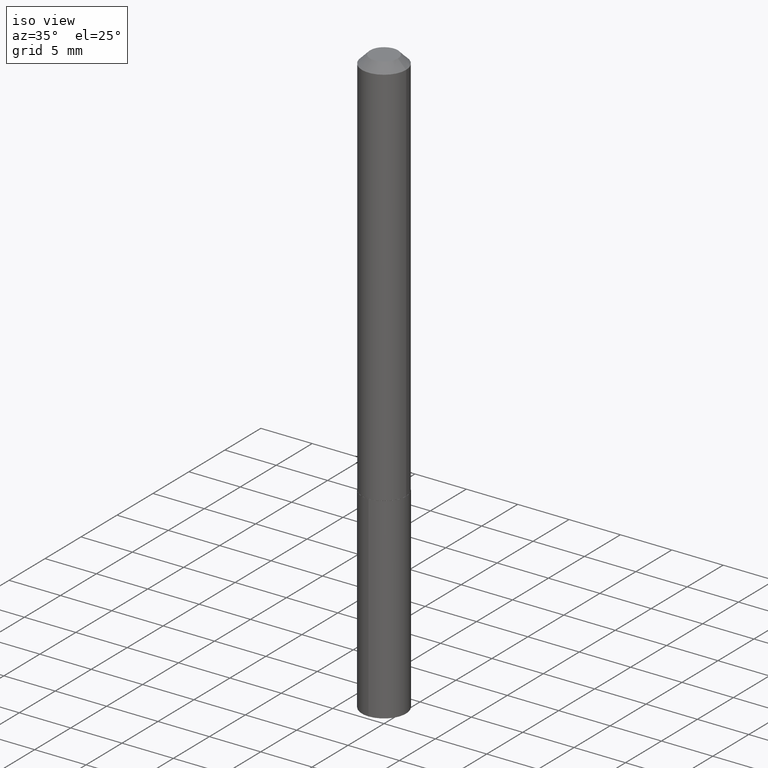
[diagram: clean part render]
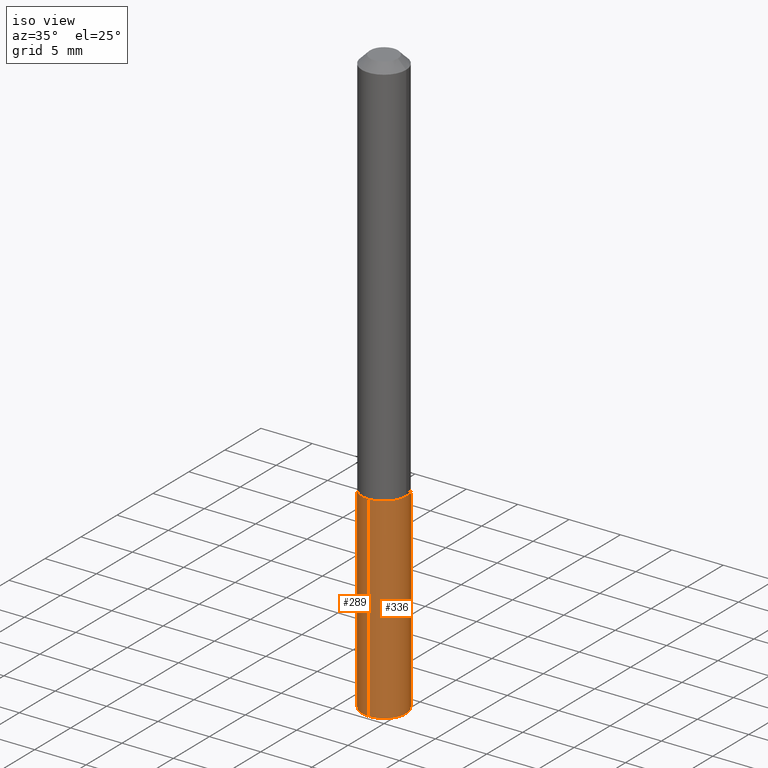
[diagram: same view with one multi-face feature highlighted, each face labeled with its STEP entity id]
A machine part, iso view. The highlighted faces form ONE feature: a constant-radius fillet chain: 2 tangent blend faces with common blend radius 2.1501 mm. The faces share edges in the B-rep.
Their STEP definitions:
[1] entity #289 (Cylinder):
#9 = VERTEX_POINT ( 'NONE', #299 ) ;
#19 = EDGE_CURVE ( 'NONE', #88, #9, #139, .T. ) ;
#21 = EDGE_LOOP ( 'NONE', ( #233, #361, #349, #92 ) ) ;
#26 = AXIS2_PLACEMENT_3D ( 'NONE', #315, #357, #378 ) ;
#35 = EDGE_CURVE ( 'NONE', #242, #87, #50, .T. ) ;
#50 = LINE ( 'NONE', #143, #379 ) ;
#55 = CARTESIAN_POINT ( 'NONE',  ( 6.014744258209616094E-16, 0.08464999999999475722, -1.507900000000000240 ) ) ;
#61 = CARTESIAN_POINT ( 'NONE',  ( 6.014744258209803449E-16, 0.08464999999999213431, -2.260818100860706448 ) ) ;
#87 = VERTEX_POINT ( 'NONE', #335 ) ;
#88 = VERTEX_POINT ( 'NONE', #61 ) ;
#92 = ORIENTED_EDGE ( 'NONE', *, *, #184, .F. ) ;
#108 = EDGE_CURVE ( 'NONE', #88, #242, #187, .T. ) ;
#111 = FACE_OUTER_BOUND ( 'NONE', #21, .T. ) ;
#127 = CARTESIAN_POINT ( 'NONE',  ( 5.528822024237795342E-29, -7.893515590949963390E-15, -2.260818100860706004 ) ) ;
#131 = DIRECTION ( 'NONE',  ( -6.982962677686265922E-15, -1.000000000000000000, 3.227227399485248397E-15 ) ) ;
#137 = CYLINDRICAL_SURFACE ( 'NONE', #319, 0.08465000000000001690 ) ;
#139 = LINE ( 'NONE', #55, #268 ) ;
#143 = CARTESIAN_POINT ( 'NONE',  ( -5.911077906661056270E-16, -0.08465000000000527658, -1.507899999999999796 ) ) ;
#174 = DIRECTION ( 'NONE',  ( -2.445550995900255209E-29, 3.491363638493147218E-15, 1.000000000000000000 ) ) ;
#176 = DIRECTION ( 'NONE',  ( -2.445550995900255490E-29, 3.491363638493147218E-15, 1.000000000000000000 ) ) ;
#184 = EDGE_CURVE ( 'NONE', #9, #87, #310, .T. ) ;
#187 = CIRCLE ( 'NONE', #324, 0.08465000000000001690 ) ;
#210 = DIRECTION ( 'NONE',  ( -2.445550995900255209E-29, 3.491363638493147218E-15, 1.000000000000000000 ) ) ;
#233 = ORIENTED_EDGE ( 'NONE', *, *, #19, .F. ) ;
#242 = VERTEX_POINT ( 'NONE', #374 ) ;
#268 = VECTOR ( 'NONE', #210, 39.37007874015748143 ) ;
#289 = ADVANCED_FACE ( 'NONE', ( #111 ), #137, .T. ) ;
#299 = CARTESIAN_POINT ( 'NONE',  ( 6.014744258209802463E-16, 0.08464999999999475722, -1.507900000000000240 ) ) ;
#310 = CIRCLE ( 'NONE', #26, 0.08465000000000001690 ) ;
#315 = CARTESIAN_POINT ( 'NONE',  ( 3.687522412846567571E-29, -5.264804710841579511E-15, -1.507900000000000018 ) ) ;
#316 = DIRECTION ( 'NONE',  ( -6.982962677686265922E-15, -1.000000000000000000, 3.227227399485248397E-15 ) ) ;
#319 = AXIS2_PLACEMENT_3D ( 'NONE', #356, #176, #131 ) ;
#324 = AXIS2_PLACEMENT_3D ( 'NONE', #127, #345, #316 ) ;
#335 = CARTESIAN_POINT ( 'NONE',  ( -5.911077906661056270E-16, -0.08465000000000527658, -1.507899999999999796 ) ) ;
#345 = DIRECTION ( 'NONE',  ( -2.445550995900255490E-29, 3.491363638493147218E-15, 1.000000000000000000 ) ) ;
#349 = ORIENTED_EDGE ( 'NONE', *, *, #35, .T. ) ;
#356 = CARTESIAN_POINT ( 'NONE',  ( 3.687522412846567571E-29, -5.264804710841579511E-15, -1.507900000000000018 ) ) ;
#357 = DIRECTION ( 'NONE',  ( -2.445550995900255490E-29, 3.491363638493147218E-15, 1.000000000000000000 ) ) ;
#361 = ORIENTED_EDGE ( 'NONE', *, *, #108, .T. ) ;
#374 = CARTESIAN_POINT ( 'NONE',  ( -5.911077906660871874E-16, -0.08465000000000792724, -2.260818100860705560 ) ) ;
#378 = DIRECTION ( 'NONE',  ( -6.982962677686265922E-15, -1.000000000000000000, 3.227227399485248397E-15 ) ) ;
#379 = VECTOR ( 'NONE', #174, 39.37007874015748143 ) ;
[2] entity #336 (Cylinder):
#9 = VERTEX_POINT ( 'NONE', #299 ) ;
#19 = EDGE_CURVE ( 'NONE', #88, #9, #139, .T. ) ;
#24 = DIRECTION ( 'NONE',  ( -2.445550995900255490E-29, 3.491363638493147218E-15, 1.000000000000000000 ) ) ;
#35 = EDGE_CURVE ( 'NONE', #242, #87, #50, .T. ) ;
#47 = CYLINDRICAL_SURFACE ( 'NONE', #105, 0.08465000000000001690 ) ;
#50 = LINE ( 'NONE', #143, #379 ) ;
#55 = CARTESIAN_POINT ( 'NONE',  ( 6.014744258209616094E-16, 0.08464999999999475722, -1.507900000000000240 ) ) ;
#61 = CARTESIAN_POINT ( 'NONE',  ( 6.014744258209803449E-16, 0.08464999999999213431, -2.260818100860706448 ) ) ;
#64 = DIRECTION ( 'NONE',  ( -6.982962677686265922E-15, -1.000000000000000000, 3.227227399485248397E-15 ) ) ;
#72 = DIRECTION ( 'NONE',  ( -2.445550995900255490E-29, 3.491363638493147218E-15, 1.000000000000000000 ) ) ;
#73 = ORIENTED_EDGE ( 'NONE', *, *, #153, .F. ) ;
#79 = DIRECTION ( 'NONE',  ( -6.982962677686265922E-15, -1.000000000000000000, 3.227227399485248397E-15 ) ) ;
#80 = CARTESIAN_POINT ( 'NONE',  ( 3.687522412846567571E-29, -5.264804710841579511E-15, -1.507900000000000018 ) ) ;
#82 = CIRCLE ( 'NONE', #114, 0.08465000000000001690 ) ;
#83 = AXIS2_PLACEMENT_3D ( 'NONE', #164, #72, #79 ) ;
#87 = VERTEX_POINT ( 'NONE', #335 ) ;
#88 = VERTEX_POINT ( 'NONE', #61 ) ;
#105 = AXIS2_PLACEMENT_3D ( 'NONE', #234, #165, #283 ) ;
#114 = AXIS2_PLACEMENT_3D ( 'NONE', #80, #24, #64 ) ;
#139 = LINE ( 'NONE', #55, #268 ) ;
#143 = CARTESIAN_POINT ( 'NONE',  ( -5.911077906661056270E-16, -0.08465000000000527658, -1.507899999999999796 ) ) ;
#153 = EDGE_CURVE ( 'NONE', #87, #9, #82, .T. ) ;
#157 = ORIENTED_EDGE ( 'NONE', *, *, #19, .T. ) ;
#164 = CARTESIAN_POINT ( 'NONE',  ( 5.528822024237795342E-29, -7.893515590949963390E-15, -2.260818100860706004 ) ) ;
#165 = DIRECTION ( 'NONE',  ( -2.445550995900255490E-29, 3.491363638493147218E-15, 1.000000000000000000 ) ) ;
#174 = DIRECTION ( 'NONE',  ( -2.445550995900255209E-29, 3.491363638493147218E-15, 1.000000000000000000 ) ) ;
#210 = DIRECTION ( 'NONE',  ( -2.445550995900255209E-29, 3.491363638493147218E-15, 1.000000000000000000 ) ) ;
#234 = CARTESIAN_POINT ( 'NONE',  ( 3.687522412846567571E-29, -5.264804710841579511E-15, -1.507900000000000018 ) ) ;
#242 = VERTEX_POINT ( 'NONE', #374 ) ;
#265 = EDGE_CURVE ( 'NONE', #242, #88, #352, .T. ) ;
#268 = VECTOR ( 'NONE', #210, 39.37007874015748143 ) ;
#283 = DIRECTION ( 'NONE',  ( -6.982962677686265922E-15, -1.000000000000000000, 3.227227399485248397E-15 ) ) ;
#299 = CARTESIAN_POINT ( 'NONE',  ( 6.014744258209802463E-16, 0.08464999999999475722, -1.507900000000000240 ) ) ;
#300 = EDGE_LOOP ( 'NONE', ( #383, #157, #73, #330 ) ) ;
#323 = FACE_OUTER_BOUND ( 'NONE', #300, .T. ) ;
#330 = ORIENTED_EDGE ( 'NONE', *, *, #35, .F. ) ;
#335 = CARTESIAN_POINT ( 'NONE',  ( -5.911077906661056270E-16, -0.08465000000000527658, -1.507899999999999796 ) ) ;
#336 = ADVANCED_FACE ( 'NONE', ( #323 ), #47, .T. ) ;
#352 = CIRCLE ( 'NONE', #83, 0.08465000000000001690 ) ;
#374 = CARTESIAN_POINT ( 'NONE',  ( -5.911077906660871874E-16, -0.08465000000000792724, -2.260818100860705560 ) ) ;
#379 = VECTOR ( 'NONE', #174, 39.37007874015748143 ) ;
#383 = ORIENTED_EDGE ( 'NONE', *, *, #265, .T. ) ;